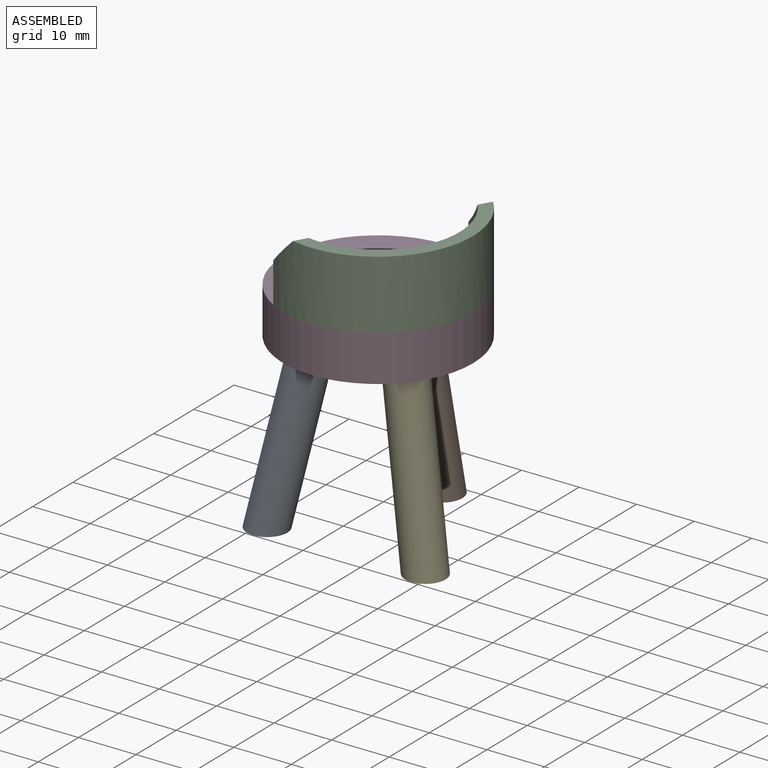
[diagram: assembled view]
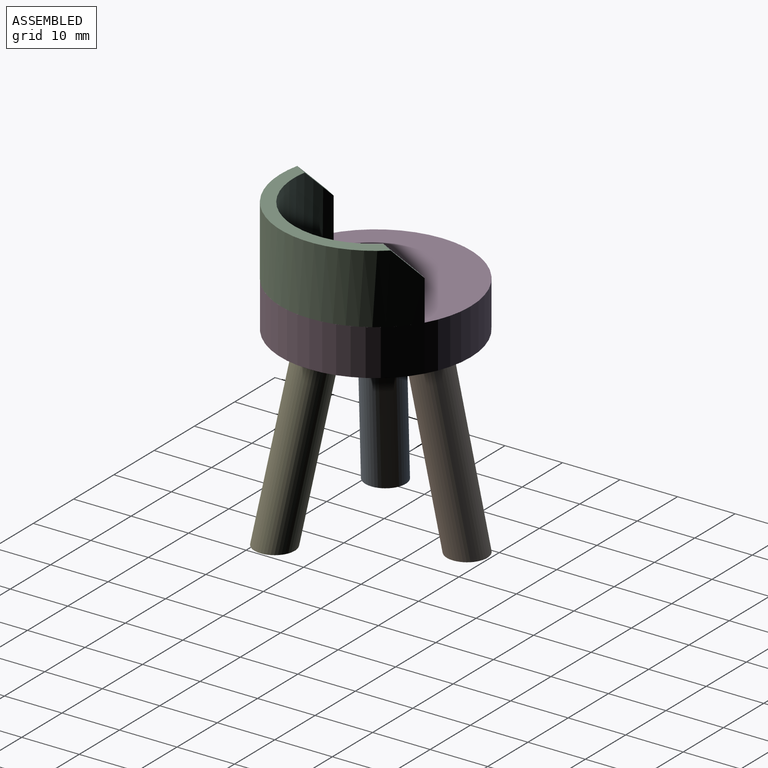
[diagram: assembled view, second angle]
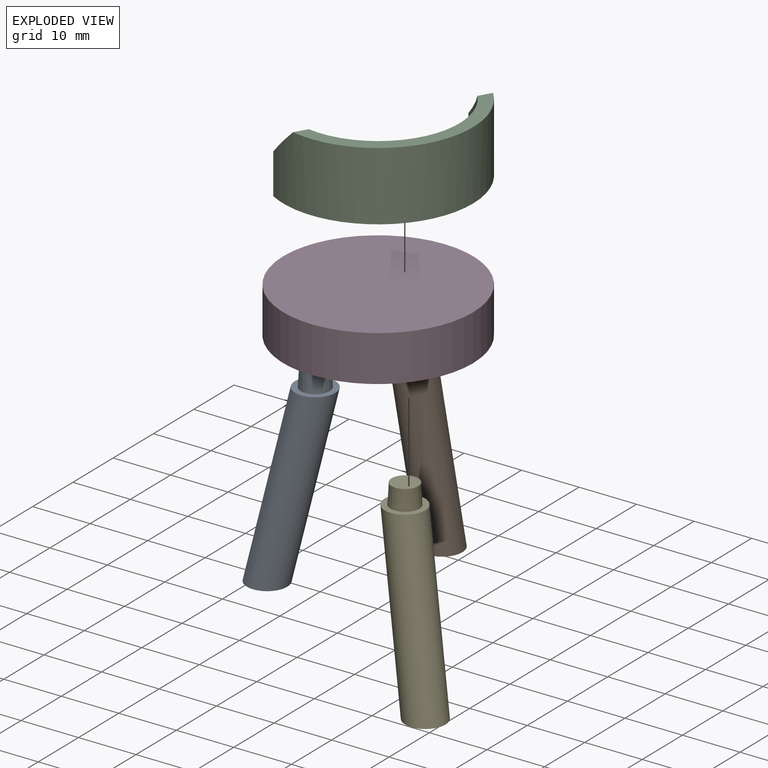
[diagram: exploded view]
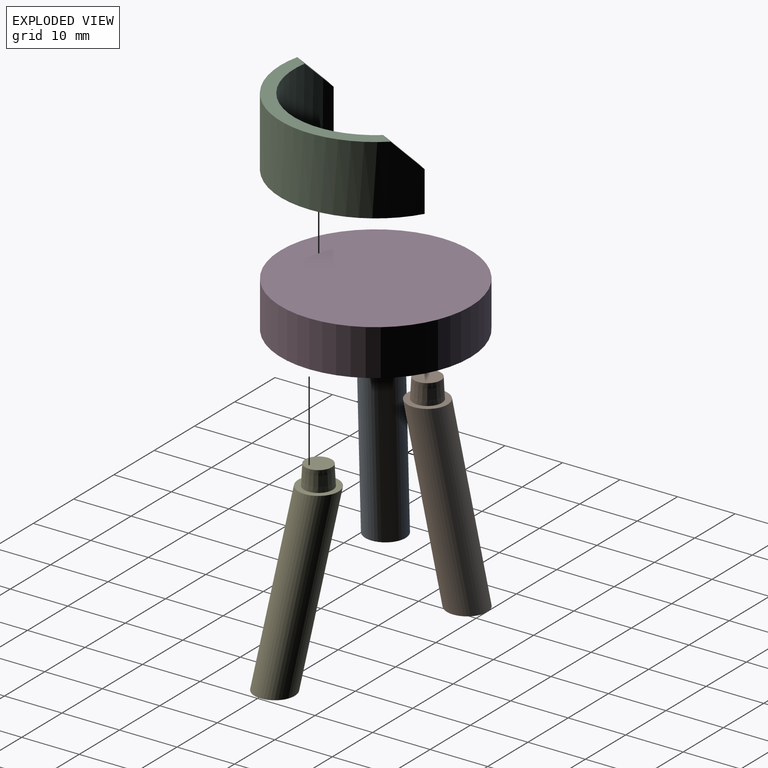
[diagram: exploded view, second angle]
ASSEMBLY  parts=5 mates=4
PART A: 5 faces, bbox 7x20.9x34.3 mm
  f0: plane 7x7mm, normal (0,0,1), area 18.8mm2, adj f2,f3
  f1: plane 7x7mm, normal (0,0,-1), area 38.5mm2, adj f2
  f2: bspline ~30.76x20.89mm, area 686.1mm2, adj f0,f1
  f3: cone r=2.5mm half-angle=3deg, axis (0,0,-1), area 53mm2, adj f0,f4
  f4: plane 4.63x4.63mm, normal (0,0,1), area 16.9mm2, adj f3
PART B: same geometry as A
PART C: 8 faces, bbox 33x16.5x12 mm
  f0: plane 7x2.33mm, normal (0,-1,0), area 16.3mm2, adj f1,f3,f5,f7
  f1: cylinder r=14.17mm len=28.35mm, axis (0,0,-1), area 509.1mm2, adj f0,f2,f4,f5,f6,f7
  f2: plane 7x2.33mm, normal (0,-1,0), area 16.3mm2, adj f1,f3,f5,f6
  f3: cylinder r=16.5mm len=33mm, axis (0,0,-1), area 596.8mm2, adj f0,f2,f4,f5,f6,f7
  f4: plane 31.45x11.5mm, normal (0,0,1), area 88.4mm2, adj f1,f3,f6,f7
  f5: plane 33x16.5mm, normal (0,0,-1), area 112.1mm2, adj f0,f1,f2,f3
  f6: plane 5x5mm, normal (0,-0.71,0.71), area 16.8mm2, adj f1,f2,f3,f4
  f7: plane 5x5mm, normal (0,-0.71,0.71), area 16.8mm2, adj f0,f1,f3,f4
PART D: 12 faces, bbox 33x33x8 mm
  f0: cylinder r=16.5mm len=33mm, axis (0,0,-1), area 829.4mm2, adj f1,f2
  f1: plane 33x33mm, normal (0,0,1), area 855.3mm2, adj f0
  f2: plane 33x33mm, normal (0,0,-1), area 770.5mm2, adj f0,f9,f10,f11
  f3: cylinder r=2.5mm len=5mm, axis (0,0,-1), area 74mm2, adj f4,f9
  f4: plane 5x5mm, normal (0,0,-1), area 19.6mm2, adj f3
  f5: cylinder r=2.5mm len=5mm, axis (0,0,-1), area 74mm2, adj f6,f11
  f6: plane 5x5mm, normal (0,0,-1), area 19.6mm2, adj f5
  f7: cylinder r=2.5mm len=5mm, axis (0,0,-1), area 74mm2, adj f8,f10
  f8: plane 5x5mm, normal (0,0,-1), area 19.6mm2, adj f7
  f9: cone r=3mm half-angle=60deg, axis (0,0,-1), area 10mm2, adj f2,f3
  f10: cone r=3mm half-angle=60deg, axis (0,0,-1), area 10mm2, adj f2,f7
  f11: cone r=3mm half-angle=60deg, axis (0,0,-1), area 10mm2, adj f2,f5
PART E: same geometry as A
PLACE A rot(axis=(0,0,1),120deg) t=(24.37,9.61,-3.36)mm
PLACE B t=(24.37,9.61,-3.36)mm
PLACE C rot(axis=(0,0,-1),120deg) t=(24.37,9.61,-3.36)mm
PLACE D rot(axis=(0,0,-1),120deg) t=(24.37,9.61,-3.36)mm
PLACE E rot(axis=(0,0,-1),120deg) t=(24.37,9.61,-3.36)mm
MATE fastened A.f3 <-> D.f7  axis (0,0,1) through (16.58,5.11,-3.36)mm
MATE fastened C.f1 <-> D.f0  axis (0,0,-1) through (24.37,9.61,4.64)mm
MATE fastened E.f3 <-> D.f3  axis (0,0,1) through (32.17,5.11,-3.36)mm
MATE fastened D.f5 <-> B.f3  axis (0,0,1) through (24.37,18.61,-3.36)mm
